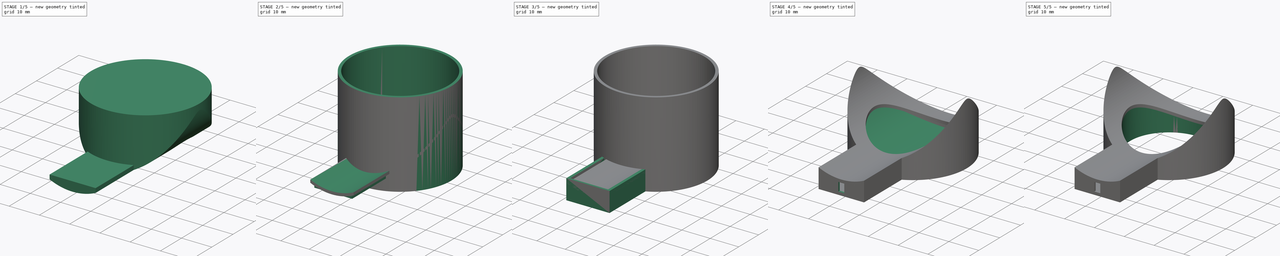
[diagram: build sequence overview — one tinted view per stage of 5, left to right]
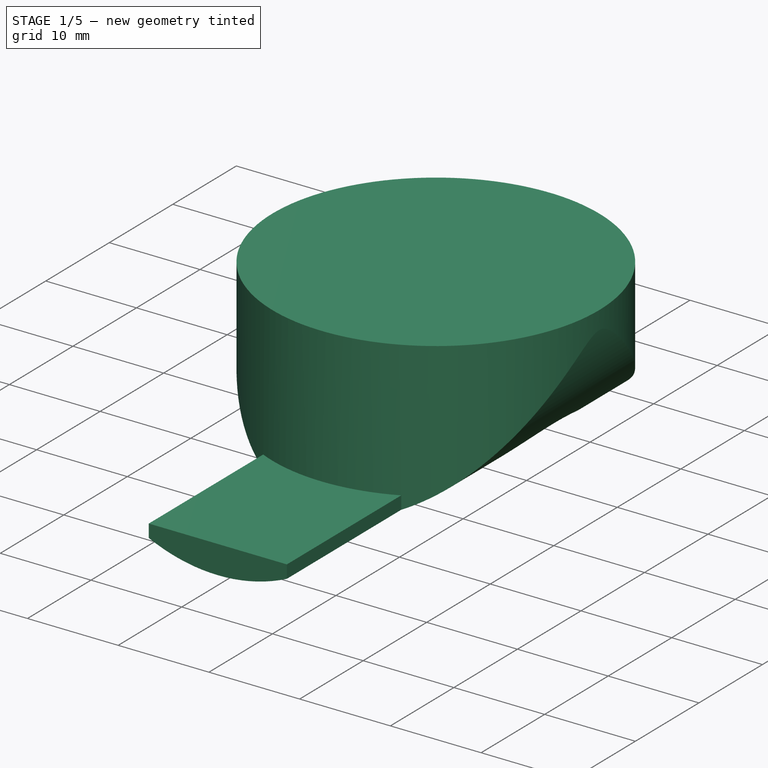
[diagram: stage 1 of 5 — iso view after this stage's code; geometry added in this stage tinted green]
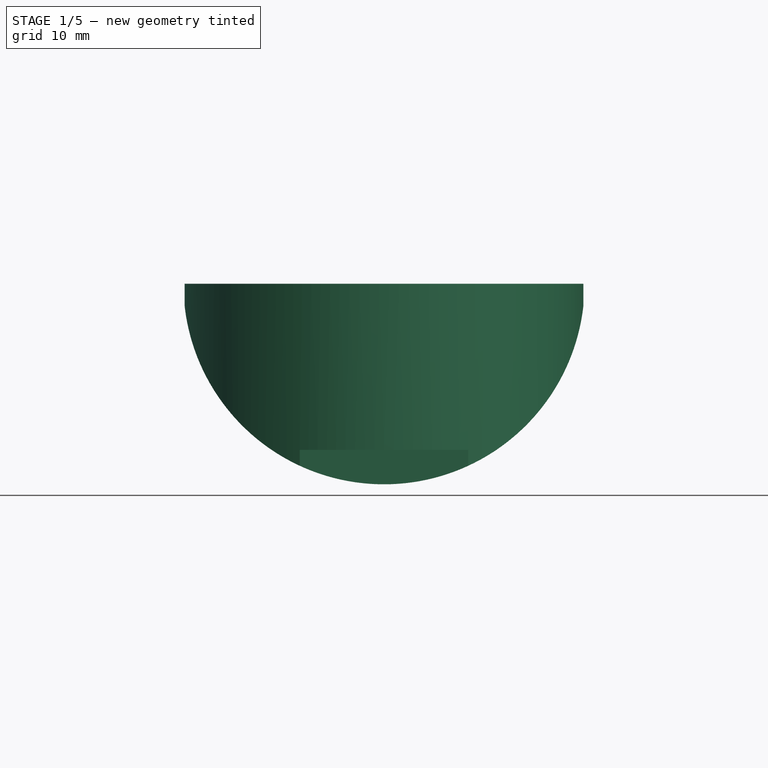
[diagram: stage 1 of 5 — front view after this stage's code; geometry added in this stage tinted green]
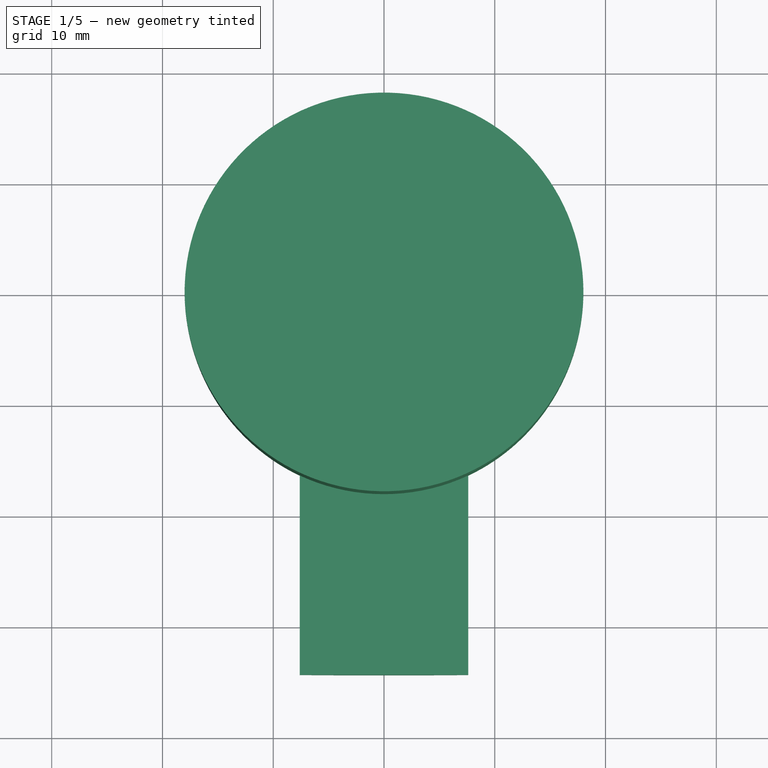
[diagram: stage 1 of 5 — top view after this stage's code; geometry added in this stage tinted green]
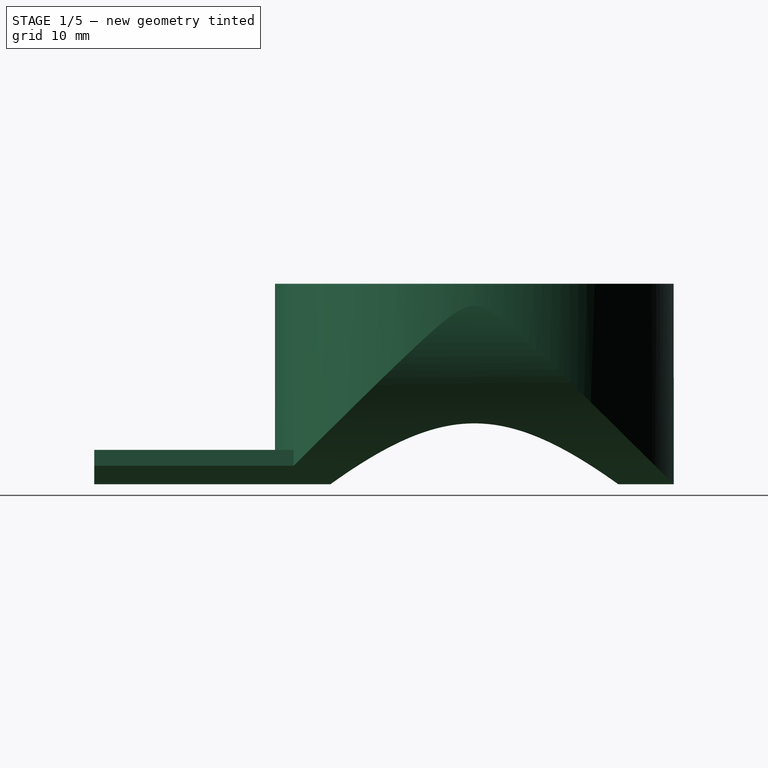
[diagram: stage 1 of 5 — right view after this stage's code; geometry added in this stage tinted green]
FCSTD DOCUMENT  (FreeCAD 0.19R24291 (Git))
Label: bruker7t_fus_single_coil_wrap3_case
License: All rights reserved
LicenseURL: http://en.wikipedia.org/wiki/All_rights_reserved
objects: Sketcher::SketchObject×19, PartDesign::Pocket×13, PartDesign::Pad×7, PartDesign::Body×4
note: 63 computed .brp shape members not serialized (recipe doc carries the construction recipe); baked Part::Feature solids carry a one-line shape summary decoded from their .brp

FEATURE [PartDesign::Body] Body
  Group = -> [Sketch,Pad,Pocket002,Sketch001,Sketch004,Pocket005,Sketch008,Pocket006,Sketch010,Pad003,Sketch011,Pocket009,Pocket,Sketch012,Pocket010]
  Origin = -> Origin
  Tip = -> Pocket010
FEATURE [Sketcher::SketchObject] Sketch013
  FullyConstrained = true
  MapMode = 5
  Placement = pos=(0,0,0) rot=(1,0,0;1.5708rad)
  sketch-geometry (4):
    g0: LineSegment StartX=-18 StartY=36 StartZ=0 EndX=18 EndY=36 EndZ=0
    g1: LineSegment StartX=18 StartY=36 StartZ=0 EndX=18 EndY=21 EndZ=0
    g2: ArcOfCircle CenterX=-8e-16 CenterY=23 CenterZ=0 NormalX=0 NormalY=0 NormalZ=1 AngleXU=0 Radius=18.1108 StartAngle=3.25225 EndAngle=6.17253
    g3: LineSegment StartX=-18 StartY=21 StartZ=0 EndX=-18 EndY=36 EndZ=0
  constraints (12):
    c: Coincident(g0,g1)
    c: Vertical(g1)
    c: Coincident(g3,g2)
    c: Coincident(g3,g0)
    c: Vertical(g3)
    c: Symmetric(g0,g0,g-2)
    c: Coincident(g1,g2)
    c: Equal(g1,g3)
    c: DistanceY(g-1,g1) = 21
    c: DistanceX(g0,g0) = 36
    c: DistanceY(g-1,g2) = 23
    c: DistanceY(g1,g1) = 15
FEATURE [Sketcher::SketchObject] Sketch014
  AttachmentOffset = pos=(0,0,22) rot=(0,0,1;0rad)
  FullyConstrained = true
  MapMode = 5
  Placement = pos=(0,0,22) rot=(0,0,1;0rad)
  Support = -> [XY_Plane003]
  sketch-geometry (1):
    g0: Circle CenterX=0 CenterY=0 CenterZ=0 NormalX=0 NormalY=0 NormalZ=1 AngleXU=0 Radius=18
  constraints (2):
    c: Coincident(g0,g-1)
    c: Radius(g0) = 18
FEATURE [PartDesign::Pad] Pad004
  Direction = (1,1,1)
  Length = 22
  Length2 = 100
  Profile = -> Sketch014
  Refine = true
  Reversed = true
  Type = 0
FEATURE [Sketcher::SketchObject] Sketch016
  FullyConstrained = true
  MapMode = 5
  Placement = pos=(0,0,0) rot=(1,0,0;1.5708rad)
  sketch-geometry (4):
    g0: LineSegment StartX=-18 StartY=0 StartZ=0 EndX=18 EndY=0 EndZ=0
    g1: ArcOfCircle CenterX=0 CenterY=22 CenterZ=0 NormalX=0 NormalY=0 NormalZ=1 AngleXU=0 Radius=18.1108 StartAngle=3.25225 EndAngle=6.17253
    g2: LineSegment StartX=18 StartY=20 StartZ=0 EndX=18 EndY=0 EndZ=0
    g3: LineSegment StartX=-18 StartY=20 StartZ=0 EndX=-18 EndY=0 EndZ=0
  constraints (12):
    c: PointOnObject(g0,g-1)
    c: PointOnObject(g1,g-2)
    c: Coincident(g2,g1)
    c: Coincident(g2,g0)
    c: Coincident(g3,g1)
    c: Coincident(g3,g0)
    c: Vertical(g3)
    c: Vertical(g2)
    c: Symmetric(g0,g0,g-2)
    c: DistanceX(g0,g0) = 36
    c: DistanceY(g2,g2) = 20
    c: DistanceY(g-1,g1) = 22
FEATURE [Sketcher::SketchObject] Sketch017
  AttachmentOffset = pos=(0,0,1) rot=(0,0,1;0rad)
  FullyConstrained = true
  MapMode = 5
  Placement = pos=(0,0,1) rot=(0,0,1;0rad)
  Support = -> [XY_Plane003]
  sketch-geometry (1):
    g0: Circle CenterX=0 CenterY=0 CenterZ=0 NormalX=0 NormalY=0 NormalZ=1 AngleXU=0 Radius=13
  constraints (2):
    c: Coincident(g0,g-1)
    c: Radius(g0) = 13
FEATURE [Sketcher::SketchObject] Sketch018
  AttachmentOffset = pos=(0,0,7) rot=(0,0,1;0rad)
  FullyConstrained = true
  MapMode = 5
  Placement = pos=(0,0,7) rot=(0,0,1;0rad)
  Support = -> [XY_Plane003]
  sketch-geometry (6):
    g0: LineSegment StartX=-7.60713 StartY=-34.3135 StartZ=0 EndX=7.60713 EndY=-34.3135 EndZ=0
    g1: LineSegment StartX=7.60713 StartY=-34.3135 StartZ=0 EndX=7.60713 EndY=-16.3135 EndZ=0
    g2: LineSegment StartX=7.60713 StartY=-16.3135 StartZ=0 EndX=-7.60713 EndY=-16.3135 EndZ=0
    g3: LineSegment StartX=-7.60713 StartY=-16.3135 StartZ=0 EndX=-7.60713 EndY=-34.3135 EndZ=0
    g4: LineSegment StartX=7.60713 StartY=-16.3135 StartZ=0 EndX=0 EndY=0 EndZ=0
    g5: LineSegment StartX=0 StartY=0 StartZ=0 EndX=-7.60713 EndY=-16.3135 EndZ=0
  constraints (15):
    c: Coincident(g0,g1)
    c: Coincident(g1,g2)
    c: Coincident(g2,g3)
    c: Coincident(g3,g0)
    c: Horizontal(g2)
    c: Vertical(g1)
    c: Vertical(g3)
    c: DistanceY(g1,g1) = 18
    c: Symmetric(g0,g0,g-2)
    c: Coincident(g4,g1)
    c: Coincident(g4,g-1)
    c: Coincident(g5,g4)
    c: Coincident(g5,g2)
    c: Angle(g4,g-2) = 2.70526
    c: Distance(g4) = 18
FEATURE [PartDesign::Pad] Pad005
  BaseFeature = -> Pad004
  Direction = (1,1,1)
  Length = 4
  Length2 = 100
  Profile = -> Sketch018
  Refine = true
  Reversed = true
  Type = 0
FEATURE [PartDesign::Pocket] Pocket012
  BaseFeature = -> Pad005
  Length = 8
  Length2 = 100
  Midplane = true
  Profile = -> Sketch016
  Refine = true
  Type = 1
FEATURE [PartDesign::Pocket] Pocket013
  BaseFeature = -> Pocket012
  Length = 11
  Length2 = 100
  Profile = -> Sketch017
  Refine = true
  Reversed = true
  Type = 0
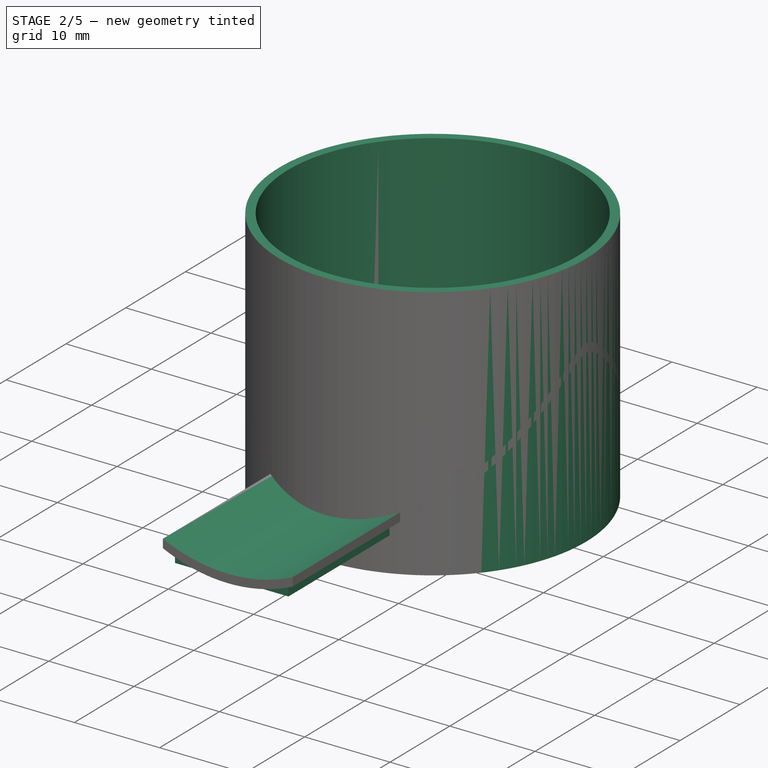
[diagram: stage 2 of 5 — iso view after this stage's code; geometry added in this stage tinted green]
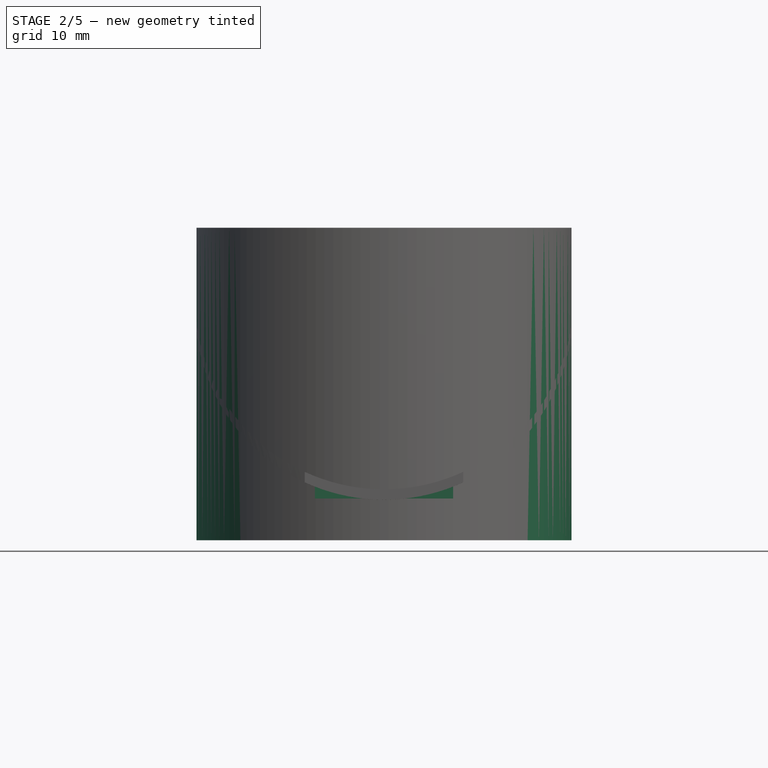
[diagram: stage 2 of 5 — front view after this stage's code; geometry added in this stage tinted green]
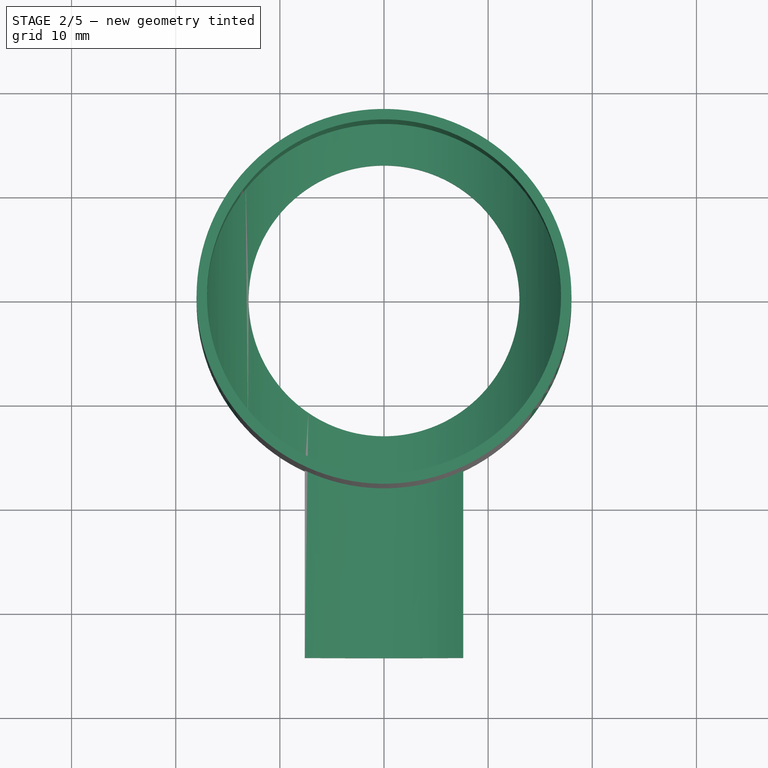
[diagram: stage 2 of 5 — top view after this stage's code; geometry added in this stage tinted green]
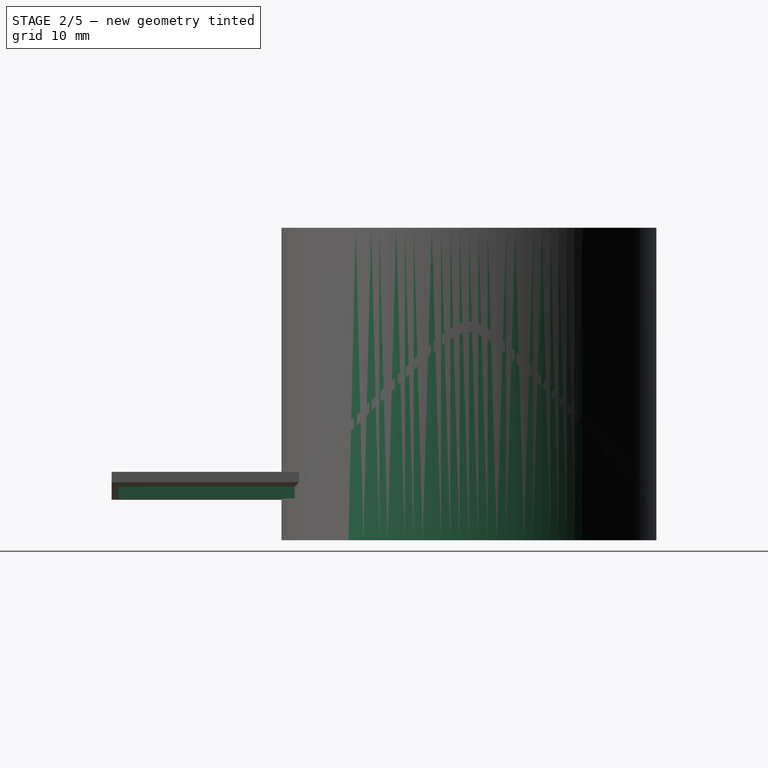
[diagram: stage 2 of 5 — right view after this stage's code; geometry added in this stage tinted green]
FEATURE [Sketcher::SketchObject] Sketch
  FullyConstrained = true
  MapMode = 5
  Support = -> [XY_Plane]
  sketch-geometry (1):
    g0: Circle CenterX=0 CenterY=0 CenterZ=0 NormalX=0 NormalY=0 NormalZ=1 AngleXU=0 Radius=18
  constraints (2):
    c: Coincident(g0,g-1)
    c: Radius(g0) = 18
FEATURE [PartDesign::Pad] Pad
  Direction = (1,1,1)
  Length = 30
  Length2 = 100
  Profile = -> Sketch
  Refine = true
  Type = 0
FEATURE [Sketcher::SketchObject] Sketch001
  FullyConstrained = true
  MapMode = 5
  Placement = pos=(0,0,0) rot=(1,0,0;1.5708rad)
  Support = -> [XZ_Plane]
  sketch-geometry (4):
    g0: LineSegment StartX=-18 StartY=35 StartZ=0 EndX=18 EndY=35 EndZ=0
    g1: LineSegment StartX=18 StartY=35 StartZ=0 EndX=18 EndY=20 EndZ=0
    g2: ArcOfCircle CenterX=-9e-16 CenterY=22 CenterZ=0 NormalX=0 NormalY=0 NormalZ=1 AngleXU=0 Radius=18.1108 StartAngle=3.25225 EndAngle=6.17253
    g3: LineSegment StartX=-18 StartY=20 StartZ=0 EndX=-18 EndY=35 EndZ=0
  constraints (12):
    c: Coincident(g0,g1)
    c: Vertical(g1)
    c: Coincident(g3,g2)
    c: Coincident(g3,g0)
    c: Vertical(g3)
    c: Symmetric(g0,g0,g-2)
    c: Coincident(g1,g2)
    c: Equal(g1,g3)
    c: DistanceY(g-1,g1) = 20
    c: DistanceX(g0,g0) = 36
    c: DistanceY(g-1,g2) = 22
    c: DistanceY(g1,g1) = 15
FEATURE [Sketcher::SketchObject] Sketch002
  FullyConstrained = true
  MapMode = 5
  Support = -> [XY_Plane001]
  sketch-geometry (1):
    g0: Circle CenterX=0 CenterY=0 CenterZ=0 NormalX=0 NormalY=0 NormalZ=1 AngleXU=0 Radius=17
  constraints (2):
    c: Coincident(g0,g-1)
    c: Radius(g0) = 17
FEATURE [Sketcher::SketchObject] Sketch003
  FullyConstrained = true
  MapMode = 5
  Placement = pos=(0,0,0) rot=(1,0,0;1.5708rad)
  Support = -> [XZ_Plane001]
  sketch-geometry (4):
    g0: LineSegment StartX=-18 StartY=28 StartZ=0 EndX=18 EndY=28 EndZ=0
    g1: LineSegment StartX=18 StartY=28 StartZ=0 EndX=18 EndY=13 EndZ=0
    g2: ArcOfCircle CenterX=1.9e-15 CenterY=20 CenterZ=0 NormalX=0 NormalY=0 NormalZ=1 AngleXU=0 Radius=19.3132 StartAngle=3.51248 EndAngle=5.91229
    g3: LineSegment StartX=-18 StartY=13 StartZ=0 EndX=-18 EndY=28 EndZ=0
  constraints (12):
    c: Coincident(g0,g1)
    c: Vertical(g1)
    c: Coincident(g3,g2)
    c: Coincident(g3,g0)
    c: Vertical(g3)
    c: Symmetric(g0,g0,g-2)
    c: Coincident(g1,g2)
    c: Equal(g1,g3)
    c: DistanceY(g-1,g1) = 13
    c: DistanceX(g0,g0) = 36
    c: DistanceY(g-1,g2) = 20
    c: DistanceY(g1,g1) = 15
FEATURE [Sketcher::SketchObject] Sketch004
  FullyConstrained = true
  MapMode = 5
  Support = -> [XY_Plane]
  sketch-geometry (1):
    g0: Circle CenterX=0 CenterY=0 CenterZ=0 NormalX=0 NormalY=0 NormalZ=1 AngleXU=0 Radius=17
  constraints (2):
    c: Coincident(g0,g-1)
    c: Radius(g0) = 17
FEATURE [PartDesign::Pocket] Pocket002
  BaseFeature = -> Pad
  Length = 30
  Length2 = 100
  Profile = -> Sketch004
  Refine = true
  Reversed = true
  Type = 0
FEATURE [Sketcher::SketchObject] Sketch019
  AttachmentOffset = pos=(0,0,6) rot=(0,0,1;0rad)
  FullyConstrained = true
  MapMode = 5
  Placement = pos=(0,0,6) rot=(0,0,1;0rad)
  Support = -> [XY_Plane003]
  sketch-geometry (6):
    g0: LineSegment StartX=-6.64243 StartY=-33.6486 StartZ=0 EndX=6.64243 EndY=-33.6486 EndZ=0
    g1: LineSegment StartX=6.64243 StartY=-33.6486 StartZ=0 EndX=6.64243 EndY=-15.6486 EndZ=0
    g2: LineSegment StartX=6.64243 StartY=-15.6486 StartZ=0 EndX=-6.64243 EndY=-15.6486 EndZ=0
    g3: LineSegment StartX=-6.64243 StartY=-15.6486 StartZ=0 EndX=-6.64243 EndY=-33.6486 EndZ=0
    g4: LineSegment StartX=6.64243 StartY=-15.6486 StartZ=0 EndX=0 EndY=0 EndZ=0
    g5: LineSegment StartX=0 StartY=0 StartZ=0 EndX=-6.64243 EndY=-15.6486 EndZ=0
  constraints (15):
    c: Coincident(g0,g1)
    c: Coincident(g1,g2)
    c: Coincident(g2,g3)
    c: Coincident(g3,g0)
    c: Horizontal(g2)
    c: Vertical(g1)
    c: Vertical(g3)
    c: DistanceY(g1,g1) = 18
    c: Symmetric(g0,g0,g-2)
    c: Coincident(g4,g1)
    c: Coincident(g4,g-1)
    c: Coincident(g5,g4)
    c: Coincident(g5,g2)
    c: Angle(g4,g-2) = 2.74017
    c: Distance(g4) = 17
FEATURE [PartDesign::Pad] Pad006
  BaseFeature = -> Pocket013
  Direction = (1,1,1)
  Length = 2
  Length2 = 100
  Profile = -> Sketch019
  Refine = true
  Reversed = true
  Type = 0
FEATURE [PartDesign::Pocket] Pocket011
  BaseFeature = -> Pad006
  Length = 5
  Length2 = 100
  Midplane = true
  Profile = -> Sketch013
  Refine = true
  Type = 1
FEATURE [PartDesign::Body] Body003  label="Cover001"
  Group = -> [Sketch014,Pad004,Pad005,Sketch018,Sketch013,Sketch016,Pocket012,Sketch017,Pocket013,Pad006,Pocket011,Sketch019]
  Origin = -> Origin003
  Tip = -> Pocket011
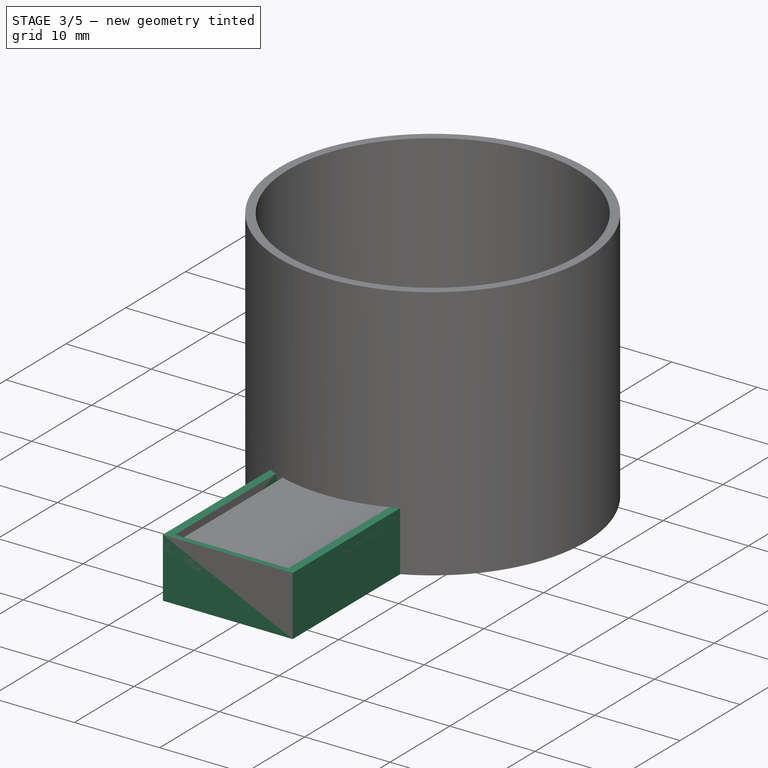
[diagram: stage 3 of 5 — iso view after this stage's code; geometry added in this stage tinted green]
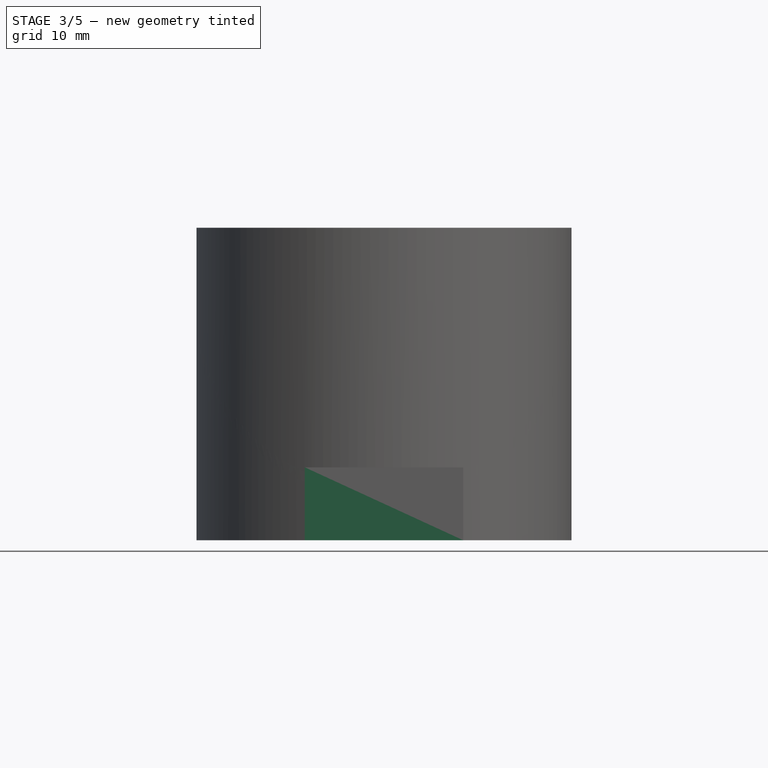
[diagram: stage 3 of 5 — front view after this stage's code; geometry added in this stage tinted green]
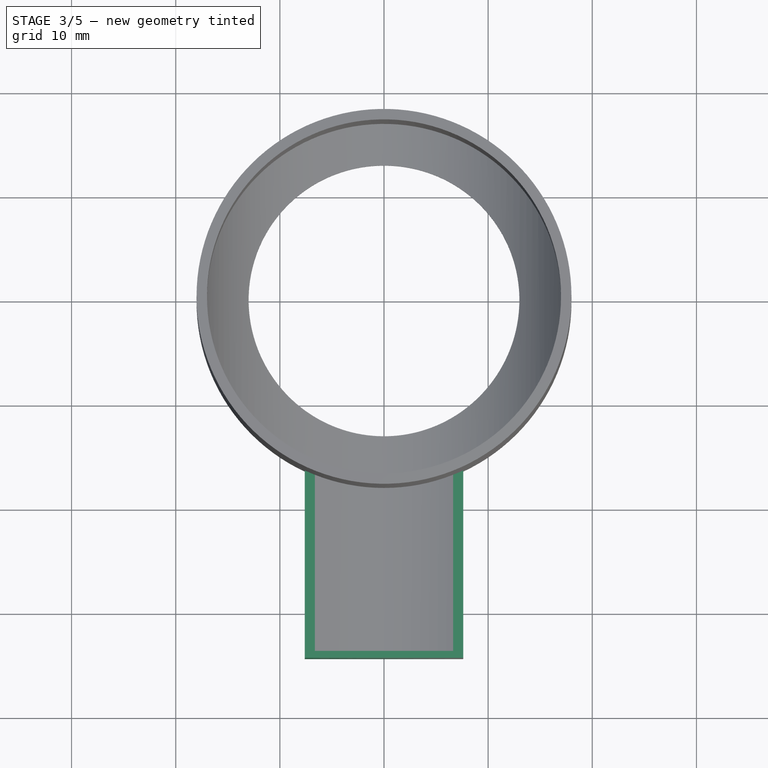
[diagram: stage 3 of 5 — top view after this stage's code; geometry added in this stage tinted green]
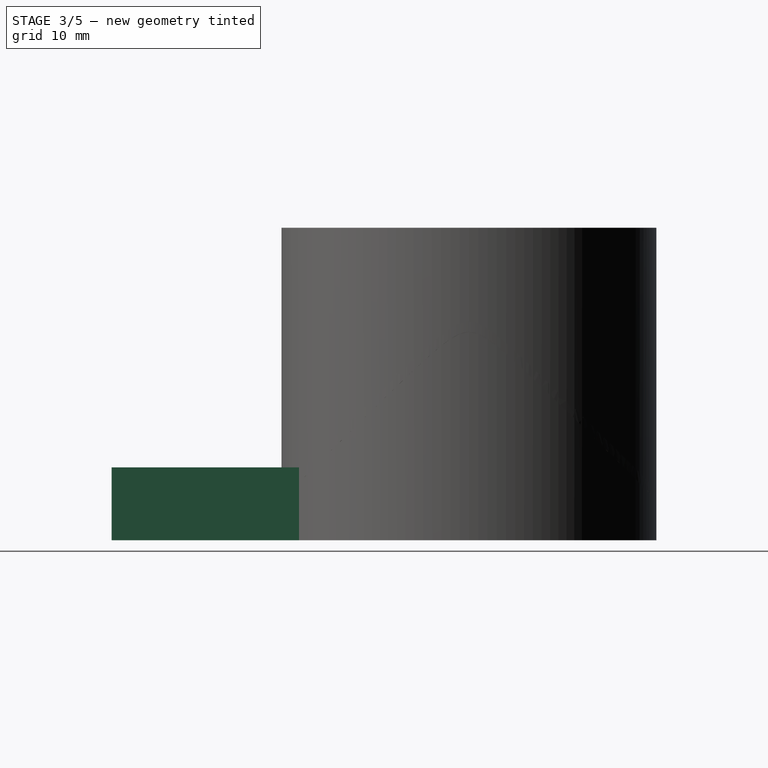
[diagram: stage 3 of 5 — right view after this stage's code; geometry added in this stage tinted green]
FEATURE [Sketcher::SketchObject] Sketch007
  FullyConstrained = true
  MapMode = 5
  Support = -> [XY_Plane002]
  sketch-geometry (1):
    g0: Circle CenterX=0 CenterY=0 CenterZ=0 NormalX=0 NormalY=0 NormalZ=1 AngleXU=0 Radius=13
  constraints (2):
    c: Coincident(g0,g-1)
    c: Radius(g0) = 13
FEATURE [PartDesign::Pocket] Pocket005
  BaseFeature = -> Pocket002
  Length = 5
  Length2 = 100
  Midplane = true
  Profile = -> Sketch004
  Refine = true
  Type = 1
FEATURE [Sketcher::SketchObject] Sketch008
  FullyConstrained = true
  MapMode = 5
  Support = -> [XY_Plane]
  sketch-geometry (1):
    g0: Circle CenterX=0 CenterY=0 CenterZ=0 NormalX=0 NormalY=0 NormalZ=1 AngleXU=0 Radius=13
  constraints (2):
    c: Coincident(g0,g-1)
    c: Radius(g0) = 13
FEATURE [PartDesign::Pocket] Pocket006
  BaseFeature = -> Pocket005
  Length = 5
  Length2 = 100
  Midplane = true
  Profile = -> Sketch008
  Refine = true
  Type = 1
FEATURE [PartDesign::Body] Body001
  Group = -> [Sketch002,Sketch003,Pad001,Pocket003,Sketch009,Pocket008]
  Origin = -> Origin001
  Tip = -> Pocket008
FEATURE [Sketcher::SketchObject] Sketch010
  FullyConstrained = true
  MapMode = 5
  Support = -> [XY_Plane]
  sketch-geometry (6):
    g0: LineSegment StartX=-7.60713 StartY=-34.3135 StartZ=0 EndX=7.60713 EndY=-34.3135 EndZ=0
    g1: LineSegment StartX=7.60713 StartY=-34.3135 StartZ=0 EndX=7.60713 EndY=-16.3135 EndZ=0
    g2: LineSegment StartX=7.60713 StartY=-16.3135 StartZ=0 EndX=-7.60713 EndY=-16.3135 EndZ=0
    g3: LineSegment StartX=-7.60713 StartY=-16.3135 StartZ=0 EndX=-7.60713 EndY=-34.3135 EndZ=0
    g4: LineSegment StartX=7.60713 StartY=-16.3135 StartZ=0 EndX=0 EndY=0 EndZ=0
    g5: LineSegment StartX=0 StartY=0 StartZ=0 EndX=-7.60713 EndY=-16.3135 EndZ=0
  constraints (15):
    c: Coincident(g0,g1)
    c: Coincident(g1,g2)
    c: Coincident(g2,g3)
    c: Coincident(g3,g0)
    c: Horizontal(g2)
    c: Vertical(g1)
    c: Vertical(g3)
    c: DistanceY(g1,g1) = 18
    c: Symmetric(g0,g0,g-2)
    c: Coincident(g4,g1)
    c: Coincident(g4,g-1)
    c: Coincident(g5,g4)
    c: Coincident(g5,g2)
    c: Angle(g4,g-2) = 2.70526
    c: Distance(g4) = 18
FEATURE [PartDesign::Pad] Pad003
  BaseFeature = -> Pocket006
  Direction = (1,1,1)
  Length = 7
  Length2 = 100
  Profile = -> Sketch010
  Refine = true
  Type = 0
FEATURE [Sketcher::SketchObject] Sketch011
  AttachmentOffset = pos=(0,0,7) rot=(0,0,1;0rad)
  FullyConstrained = true
  MapMode = 5
  Placement = pos=(0,0,7) rot=(0,0,1;0rad)
  Support = -> [XY_Plane]
  sketch-geometry (6):
    g0: LineSegment StartX=-6.64243 StartY=-33.6486 StartZ=0 EndX=6.64243 EndY=-33.6486 EndZ=0
    g1: LineSegment StartX=6.64243 StartY=-33.6486 StartZ=0 EndX=6.64243 EndY=-15.6486 EndZ=0
    g2: LineSegment StartX=6.64243 StartY=-15.6486 StartZ=0 EndX=-6.64243 EndY=-15.6486 EndZ=0
    g3: LineSegment StartX=-6.64243 StartY=-15.6486 StartZ=0 EndX=-6.64243 EndY=-33.6486 EndZ=0
    g4: LineSegment StartX=6.64243 StartY=-15.6486 StartZ=0 EndX=0 EndY=0 EndZ=0
    g5: LineSegment StartX=0 StartY=0 StartZ=0 EndX=-6.64243 EndY=-15.6486 EndZ=0
  constraints (15):
    c: Coincident(g0,g1)
    c: Coincident(g1,g2)
    c: Coincident(g2,g3)
    c: Coincident(g3,g0)
    c: Horizontal(g2)
    c: Vertical(g1)
    c: Vertical(g3)
    c: DistanceY(g1,g1) = 18
    c: Symmetric(g0,g0,g-2)
    c: Coincident(g4,g1)
    c: Coincident(g4,g-1)
    c: Coincident(g5,g4)
    c: Coincident(g5,g2)
    c: Angle(g4,g-2) = 2.74017
    c: Distance(g4) = 17
FEATURE [PartDesign::Pocket] Pocket009
  BaseFeature = -> Pad003
  Length = 6
  Length2 = 100
  Profile = -> Sketch011
  Refine = true
  Type = 0
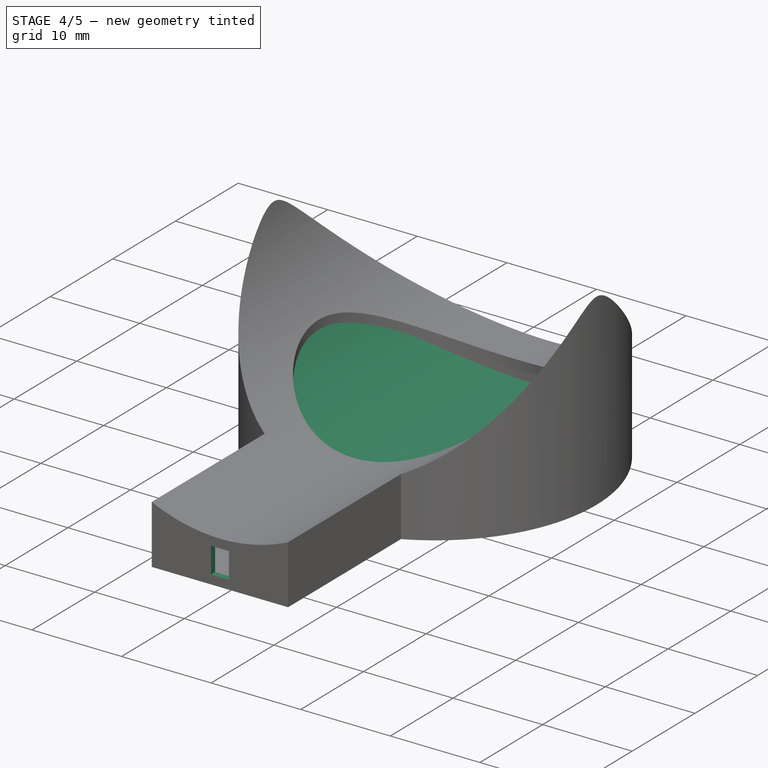
[diagram: stage 4 of 5 — iso view after this stage's code; geometry added in this stage tinted green]
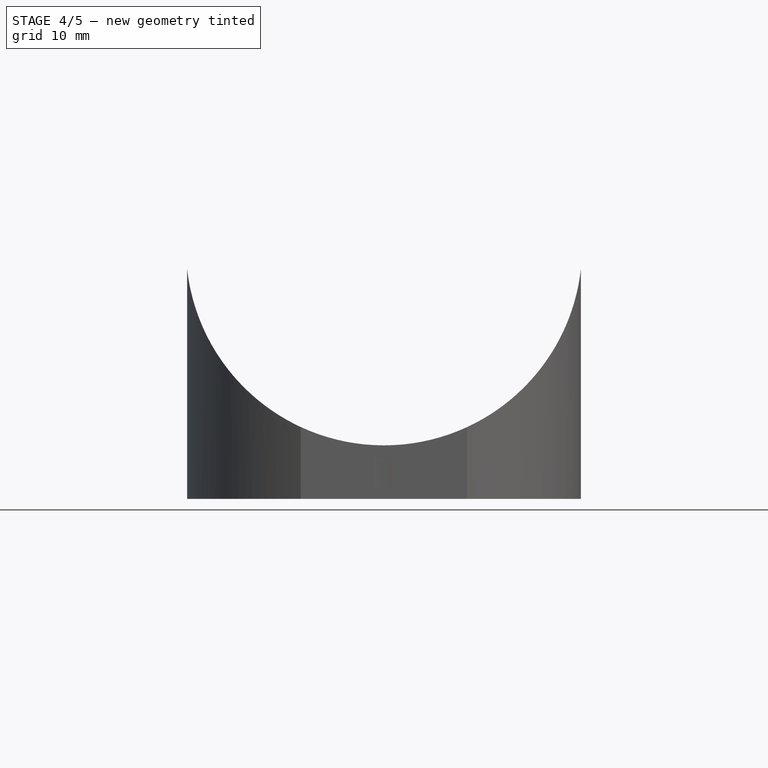
[diagram: stage 4 of 5 — front view after this stage's code; geometry added in this stage tinted green]
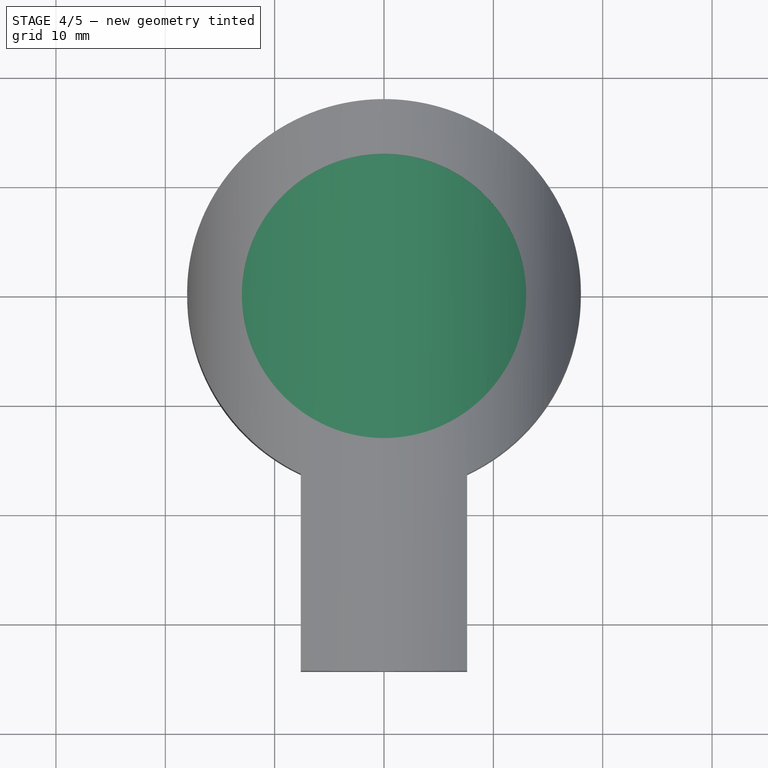
[diagram: stage 4 of 5 — top view after this stage's code; geometry added in this stage tinted green]
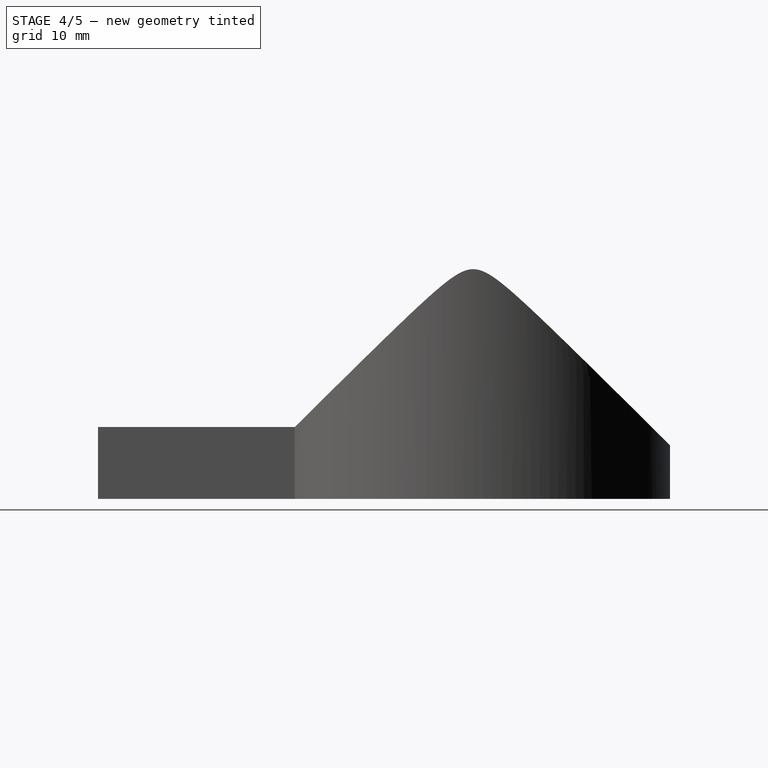
[diagram: stage 4 of 5 — right view after this stage's code; geometry added in this stage tinted green]
FEATURE [PartDesign::Pad] Pad001
  Direction = (1,1,1)
  Length = 21
  Length2 = 100
  Profile = -> Sketch002
  Refine = true
  Type = 0
FEATURE [PartDesign::Pocket] Pocket003
  BaseFeature = -> Pad001
  Length = 5
  Length2 = 100
  Midplane = true
  Profile = -> Sketch003
  Refine = true
  Reversed = true
  Type = 1
FEATURE [PartDesign::Pocket] Pocket
  BaseFeature = -> Pocket009
  Length = 5
  Length2 = 100
  Midplane = true
  Profile = -> Sketch001
  Refine = true
  Type = 1
FEATURE [Sketcher::SketchObject] Sketch012
  AttachmentOffset = pos=(0,0,35) rot=(0,0,1;0rad)
  FullyConstrained = true
  MapMode = 5
  Placement = pos=(0,-35,-7.8e-15) rot=(1,0,0;1.5708rad)
  Support = -> [XZ_Plane]
  sketch-geometry (4):
    g0: LineSegment StartX=-1 StartY=5 StartZ=0 EndX=1 EndY=5 EndZ=0
    g1: LineSegment StartX=1 StartY=5 StartZ=0 EndX=1 EndY=1 EndZ=0
    g2: LineSegment StartX=1 StartY=1 StartZ=0 EndX=-1 EndY=1 EndZ=0
    g3: LineSegment StartX=-1 StartY=1 StartZ=0 EndX=-1 EndY=5 EndZ=0
  constraints (11):
    c: Coincident(g0,g1)
    c: Coincident(g1,g2)
    c: Coincident(g2,g3)
    c: Coincident(g3,g0)
    c: Horizontal(g2)
    c: Vertical(g1)
    c: Vertical(g3)
    c: DistanceX(g0,g0) = 2
    c: DistanceY(g1,g1) = 4
    c: DistanceY(g-1,g0) = 5
    c: Symmetric(g0,g0,g-2)
FEATURE [PartDesign::Pocket] Pocket010
  BaseFeature = -> Pocket
  Length = 5
  Length2 = 100
  Profile = -> Sketch012
  Refine = true
  Type = 0
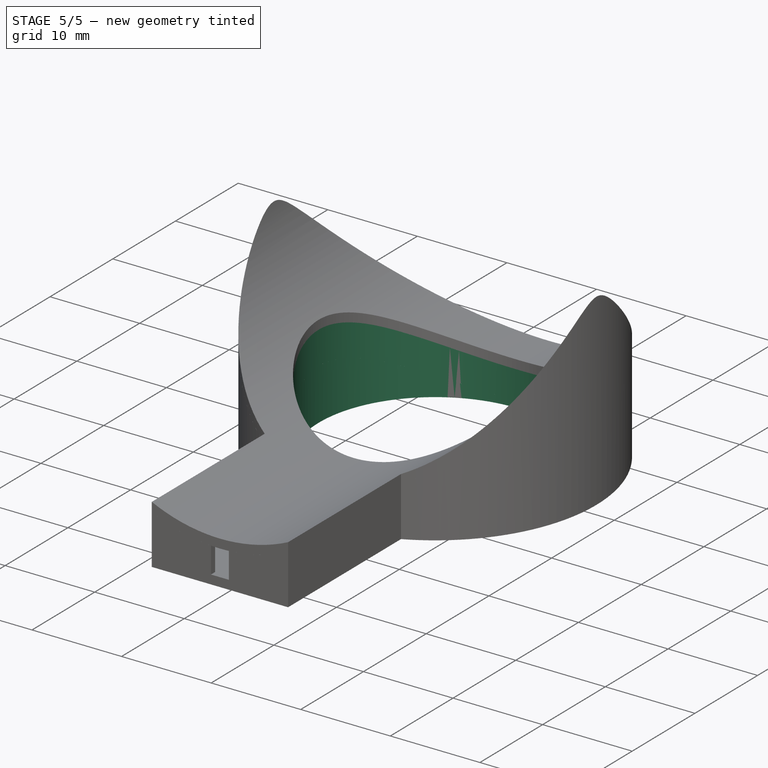
[diagram: stage 5 of 5 — iso view after this stage's code; geometry added in this stage tinted green]
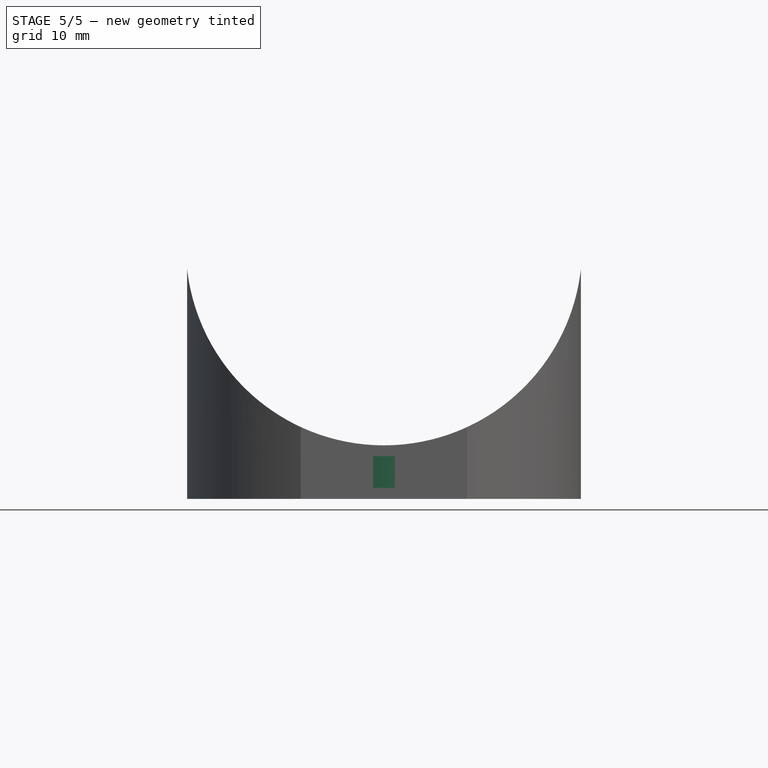
[diagram: stage 5 of 5 — front view after this stage's code; geometry added in this stage tinted green]
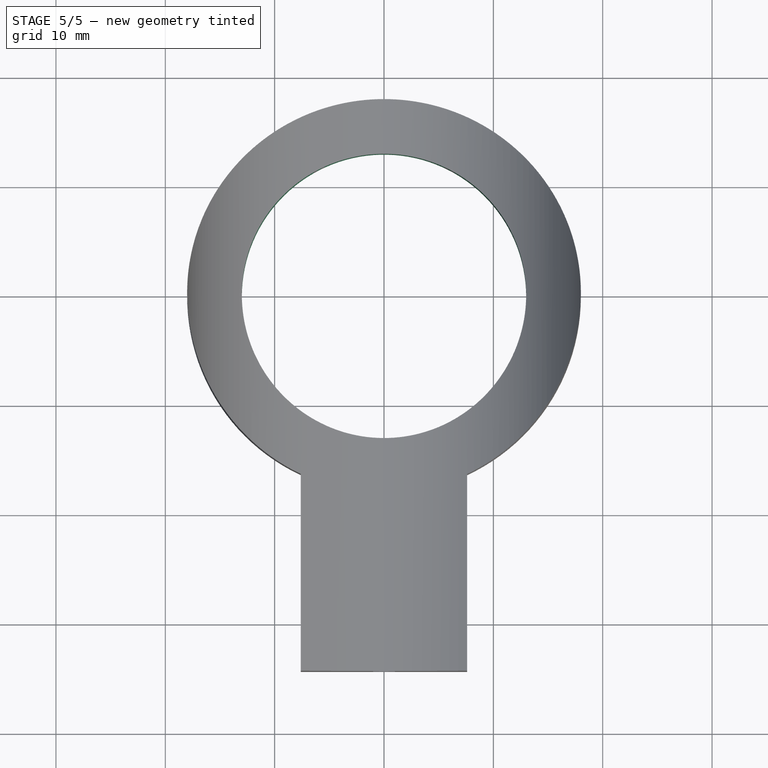
[diagram: stage 5 of 5 — top view after this stage's code; geometry added in this stage tinted green]
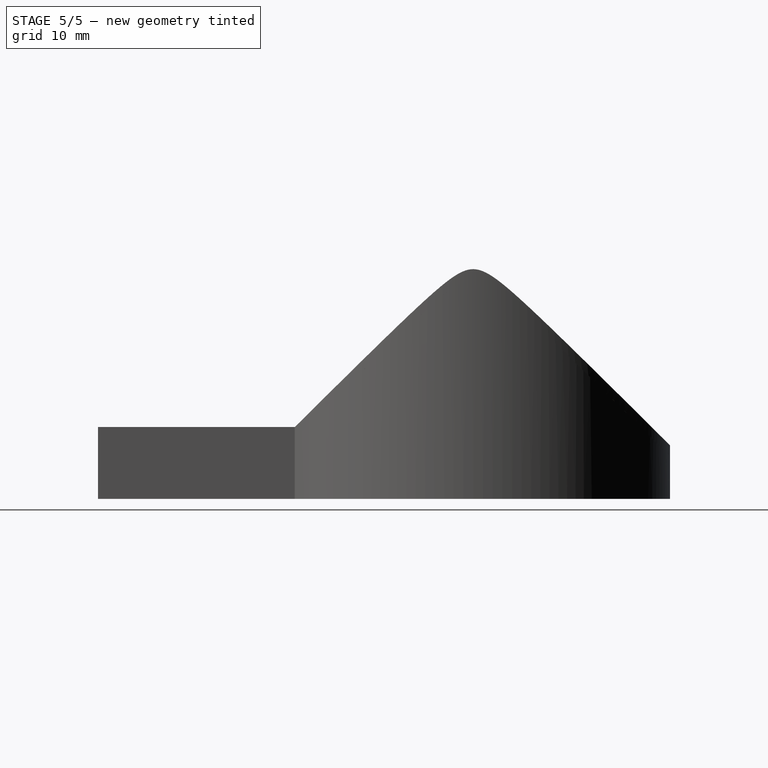
[diagram: stage 5 of 5 — right view after this stage's code; geometry added in this stage tinted green]
FEATURE [Sketcher::SketchObject] Sketch005
  FullyConstrained = true
  MapMode = 5
  Support = -> [XY_Plane002]
  sketch-geometry (1):
    g0: Circle CenterX=0 CenterY=0 CenterZ=0 NormalX=0 NormalY=0 NormalZ=1 AngleXU=0 Radius=14
  constraints (2):
    c: Coincident(g0,g-1)
    c: Radius(g0) = 14
FEATURE [PartDesign::Pad] Pad002
  Direction = (1,1,1)
  Length = 20
  Length2 = 100
  Profile = -> Sketch005
  Refine = true
  Type = 0
FEATURE [Sketcher::SketchObject] Sketch006
  FullyConstrained = true
  MapMode = 5
  Placement = pos=(0,0,0) rot=(1,0,0;1.5708rad)
  Support = -> [XZ_Plane002]
  sketch-geometry (4):
    g0: LineSegment StartX=-18 StartY=34 StartZ=0 EndX=18 EndY=34 EndZ=0
    g1: LineSegment StartX=18 StartY=34 StartZ=0 EndX=18 EndY=20 EndZ=0
    g2: ArcOfCircle CenterX=4e-16 CenterY=22 CenterZ=0 NormalX=0 NormalY=0 NormalZ=1 AngleXU=0 Radius=18.1108 StartAngle=3.25225 EndAngle=6.17253
    g3: LineSegment StartX=-18 StartY=20 StartZ=0 EndX=-18 EndY=34 EndZ=0
  constraints (12):
    c: Coincident(g0,g1)
    c: Vertical(g1)
    c: Coincident(g3,g2)
    c: Coincident(g3,g0)
    c: Vertical(g3)
    c: Symmetric(g0,g0,g-2)
    c: Coincident(g1,g2)
    c: Equal(g1,g3)
    c: DistanceY(g-1,g1) = 20
    c: DistanceX(g0,g0) = 36
    c: DistanceY(g-1,g2) = 22
    c: DistanceY(g1,g1) = 14
FEATURE [PartDesign::Pocket] Pocket004
  BaseFeature = -> Pad002
  Length = 5
  Length2 = 100
  Midplane = true
  Profile = -> Sketch006
  Refine = true
  Type = 1
FEATURE [PartDesign::Pocket] Pocket007
  BaseFeature = -> Pocket004
  Length = 5
  Length2 = 100
  Midplane = true
  Profile = -> Sketch007
  Refine = true
  Type = 1
FEATURE [PartDesign::Body] Body002
  Group = -> [Sketch005,Pad002,Sketch006,Pocket004,Sketch007,Pocket007]
  Origin = -> Origin002
  Tip = -> Pocket007
FEATURE [Sketcher::SketchObject] Sketch009
  FullyConstrained = true
  MapMode = 5
  Support = -> [XY_Plane001]
  sketch-geometry (1):
    g0: Circle CenterX=0 CenterY=0 CenterZ=0 NormalX=0 NormalY=0 NormalZ=1 AngleXU=0 Radius=13
  constraints (2):
    c: Coincident(g0,g-1)
    c: Radius(g0) = 13
FEATURE [PartDesign::Pocket] Pocket008
  BaseFeature = -> Pocket003
  Length = 5
  Length2 = 100
  Midplane = true
  Profile = -> Sketch009
  Refine = true
  Type = 1
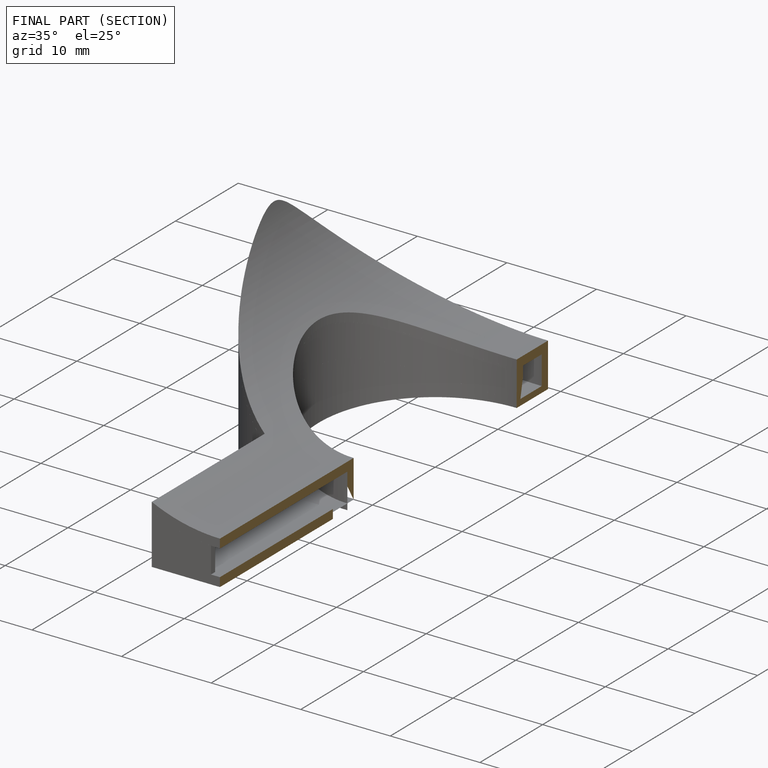
[diagram: finished part — half-section view (interior)]
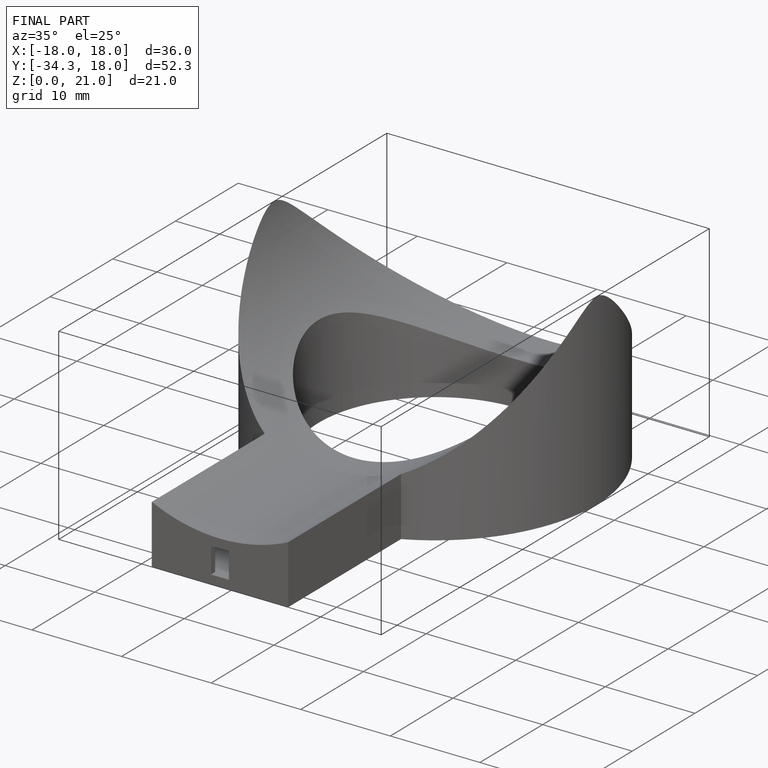
[diagram: finished part — iso view with bounding-box wireframe]
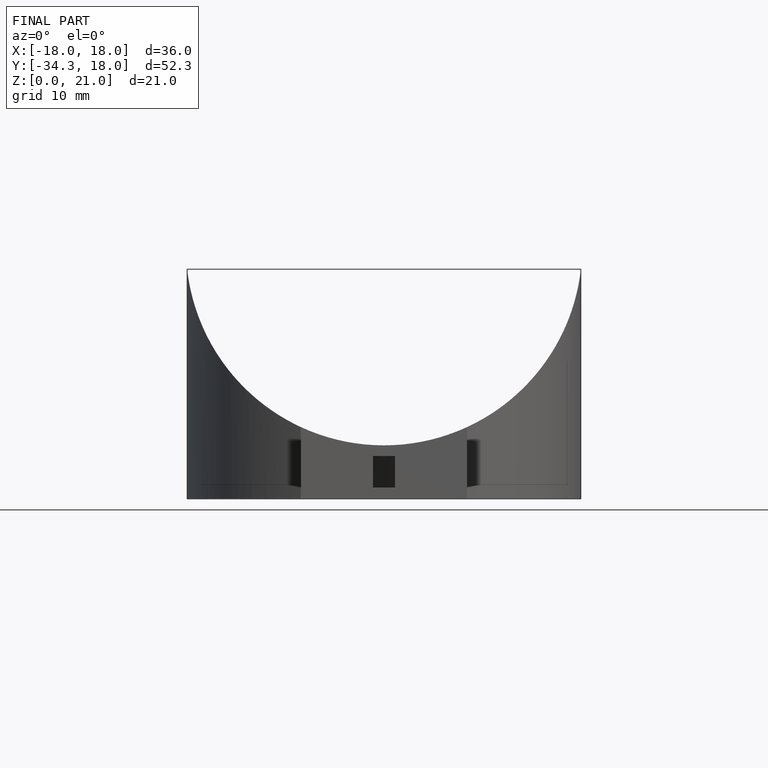
[diagram: finished part — front view with bounding-box wireframe]
